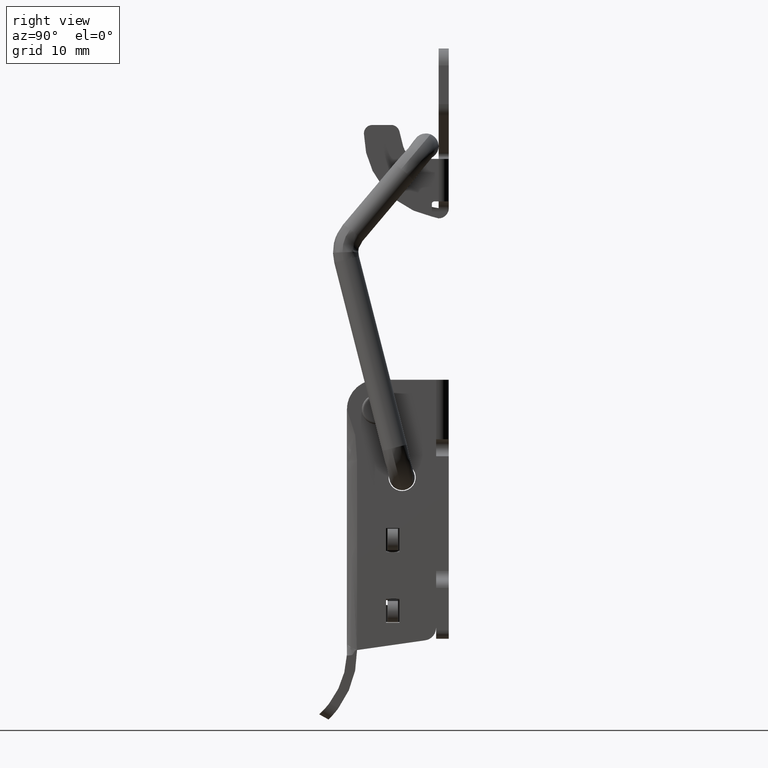
[diagram: clean part render]
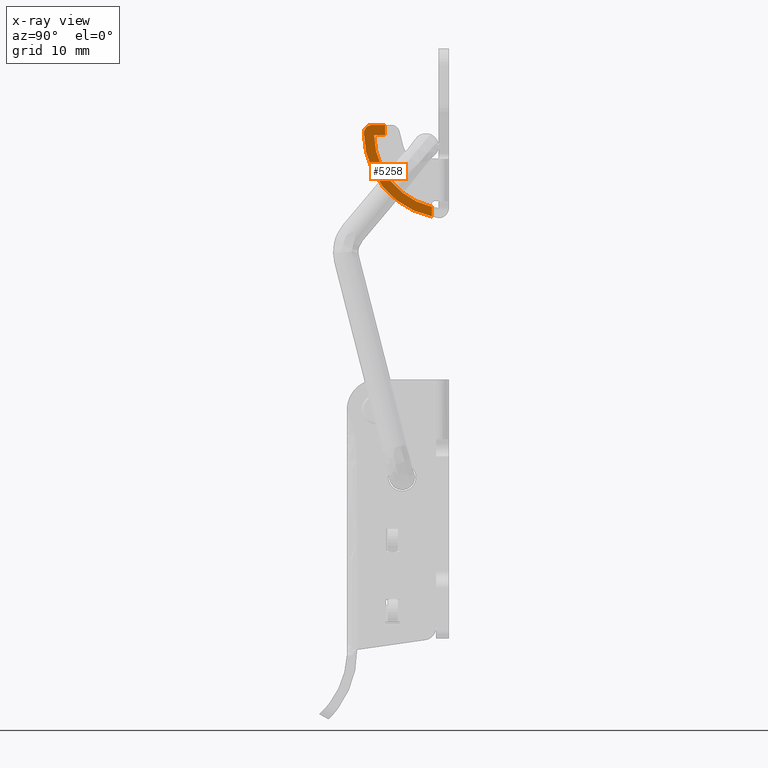
[diagram: x-ray — body ghosted, one internal face saturated and labeled with its STEP entity id]
A machine part, right view, then the same camera in x-ray: the body is ghosted and one INTERNAL B-rep face — a face not visible from any outside direction — is saturated and labeled: STEP entity #5258.
In plain terms, the highlighted planar face has unit normal (1, 0, 0).
Its self-contained STEP definition (entity closure, byte-faithful):
#5258 = ADVANCED_FACE ( 'NONE', ( #9665 ), #9659, .T. ) ;
#5259 = EDGE_LOOP ( 'NONE', ( #5260, #5320, #5322, #5325, #5328, #5331, #5334 ) ) ;
#5260 = ORIENTED_EDGE ( 'NONE', *, *, #5261, .T. ) ;
#5261 = EDGE_CURVE ( 'NONE', #5262, #5263, #9654, .T. ) ;
#5262 = VERTEX_POINT ( 'NONE', #9649 ) ;
#5263 = VERTEX_POINT ( 'NONE', #9648 ) ;
#5264 = VERTEX_POINT ( 'NONE', #9647 ) ;
#5307 = EDGE_CURVE ( 'NONE', #5333, #5262, #9808, .T. ) ;
#5320 = ORIENTED_EDGE ( 'NONE', *, *, #5321, .T. ) ;
#5321 = EDGE_CURVE ( 'NONE', #5263, #5264, #9844, .T. ) ;
#5322 = ORIENTED_EDGE ( 'NONE', *, *, #5323, .F. ) ;
#5323 = EDGE_CURVE ( 'NONE', #5324, #5264, #9840, .T. ) ;
#5324 = VERTEX_POINT ( 'NONE', #9835 ) ;
#5325 = ORIENTED_EDGE ( 'NONE', *, *, #5326, .F. ) ;
#5326 = EDGE_CURVE ( 'NONE', #5327, #5324, #9834, .T. ) ;
#5327 = VERTEX_POINT ( 'NONE', #9830 ) ;
#5328 = ORIENTED_EDGE ( 'NONE', *, *, #5329, .T. ) ;
#5329 = EDGE_CURVE ( 'NONE', #5327, #5330, #9829, .T. ) ;
#5330 = VERTEX_POINT ( 'NONE', #9825 ) ;
#5331 = ORIENTED_EDGE ( 'NONE', *, *, #5332, .F. ) ;
#5332 = EDGE_CURVE ( 'NONE', #5333, #5330, #9824, .T. ) ;
#5333 = VERTEX_POINT ( 'NONE', #9820 ) ;
#5334 = ORIENTED_EDGE ( 'NONE', *, *, #5307, .T. ) ;
#9647 = CARTESIAN_POINT ( 'NONE',  ( 0.7000000000001139800, -6.800000000000139300, -7.151912114251270900 ) ) ;
#9648 = CARTESIAN_POINT ( 'NONE',  ( 0.7000000000001139800, -6.800000000000119700, -8.286745999999999100 ) ) ;
#9649 = CARTESIAN_POINT ( 'NONE',  ( -7.299992244349769300, -6.800000000000139300, 1.498758565214986000 ) ) ;
#9650 = DIRECTION ( 'NONE',  ( 0.0000000000000000000, 0.0000000000000000000, -1.000000000000000000 ) ) ;
#9651 = DIRECTION ( 'NONE',  ( 0.0000000000000000000, -1.000000000000000000, 0.0000000000000000000 ) ) ;
#9652 = CARTESIAN_POINT ( 'NONE',  ( 2.699999999999930500, -6.800000000000139300, 1.511213000000194900 ) ) ;
#9653 = AXIS2_PLACEMENT_3D ( 'NONE', #9652, #9651, #9650 ) ;
#9654 = CIRCLE ( 'NONE', #9653, 10.00000000000000000 ) ;
#9655 = DIRECTION ( 'NONE',  ( 1.000000000000000000, 0.0000000000000000000, 0.0000000000000000000 ) ) ;
#9656 = DIRECTION ( 'NONE',  ( 0.0000000000000000000, -1.000000000000000000, 0.0000000000000000000 ) ) ;
#9657 = CARTESIAN_POINT ( 'NONE',  ( 0.0000000000000000000, -6.800000000000099300, 0.0000000000000000000 ) ) ;
#9658 = AXIS2_PLACEMENT_3D ( 'NONE', #9657, #9656, #9655 ) ;
#9659 = PLANE ( 'NONE',  #9658 ) ;
#9665 = FACE_OUTER_BOUND ( 'NONE', #5259, .T. ) ;
#9804 = DIRECTION ( 'NONE',  ( 0.0000000000000000000, 0.0000000000000000000, -1.000000000000000000 ) ) ;
#9805 = DIRECTION ( 'NONE',  ( 0.0000000000000000000, -1.000000000000000000, 0.0000000000000000000 ) ) ;
#9806 = CARTESIAN_POINT ( 'NONE',  ( -6.299999999999900300, -6.800000000000139300, 1.500004000000190000 ) ) ;
#9807 = AXIS2_PLACEMENT_3D ( 'NONE', #9806, #9805, #9804 ) ;
#9808 = CIRCLE ( 'NONE', #9807, 1.000000000000000000 ) ;
#9820 = CARTESIAN_POINT ( 'NONE',  ( -6.299999999999900300, -6.800000000000139300, 2.500004000000190200 ) ) ;
#9821 = DIRECTION ( 'NONE',  ( 1.000000000000000000, 0.0000000000000000000, 0.0000000000000000000 ) ) ;
#9822 = VECTOR ( 'NONE', #9821, 1000.000000000000000 ) ;
#9823 = CARTESIAN_POINT ( 'NONE',  ( -6.299999999999900300, -6.800000000000139300, 2.500004000000190200 ) ) ;
#9824 = LINE ( 'NONE', #9823, #9822 ) ;
#9825 = CARTESIAN_POINT ( 'NONE',  ( -4.800000000000070000, -6.800000000000139300, 2.500004000000190200 ) ) ;
#9826 = DIRECTION ( 'NONE',  ( 0.0000000000000000000, 0.0000000000000000000, 1.000000000000000000 ) ) ;
#9827 = VECTOR ( 'NONE', #9826, 1000.000000000000000 ) ;
#9828 = CARTESIAN_POINT ( 'NONE',  ( -4.800000000000070000, -6.800000000000099300, 0.0000000000000000000 ) ) ;
#9829 = LINE ( 'NONE', #9828, #9827 ) ;
#9830 = CARTESIAN_POINT ( 'NONE',  ( -4.800000000000070000, -6.800000000000139300, 1.300004000000190000 ) ) ;
#9831 = DIRECTION ( 'NONE',  ( -1.000000000000000000, 0.0000000000000000000, 0.0000000000000000000 ) ) ;
#9832 = VECTOR ( 'NONE', #9831, 1000.000000000000000 ) ;
#9833 = CARTESIAN_POINT ( 'NONE',  ( -3.800000000000070000, -6.800000000000139300, 1.300004000000190000 ) ) ;
#9834 = LINE ( 'NONE', #9833, #9832 ) ;
#9835 = CARTESIAN_POINT ( 'NONE',  ( -6.099211534631789900, -6.800000000000139300, 1.300004000000190000 ) ) ;
#9836 = DIRECTION ( 'NONE',  ( 0.0000000000000000000, 0.0000000000000000000, -1.000000000000000000 ) ) ;
#9837 = DIRECTION ( 'NONE',  ( 0.0000000000000000000, -1.000000000000000000, 0.0000000000000000000 ) ) ;
#9838 = CARTESIAN_POINT ( 'NONE',  ( 2.699999999999930500, -6.800000000000139300, 1.417802000000194100 ) ) ;
#9839 = AXIS2_PLACEMENT_3D ( 'NONE', #9838, #9837, #9836 ) ;
#9840 = CIRCLE ( 'NONE', #9839, 8.800000000000000700 ) ;
#9841 = DIRECTION ( 'NONE',  ( 0.0000000000000000000, 0.0000000000000000000, 1.000000000000000000 ) ) ;
#9842 = VECTOR ( 'NONE', #9841, 1000.000000000000000 ) ;
#9843 = CARTESIAN_POINT ( 'NONE',  ( 0.7000000000001139800, -6.800000000000099300, 0.0000000000000000000 ) ) ;
#9844 = LINE ( 'NONE', #9843, #9842 ) ;